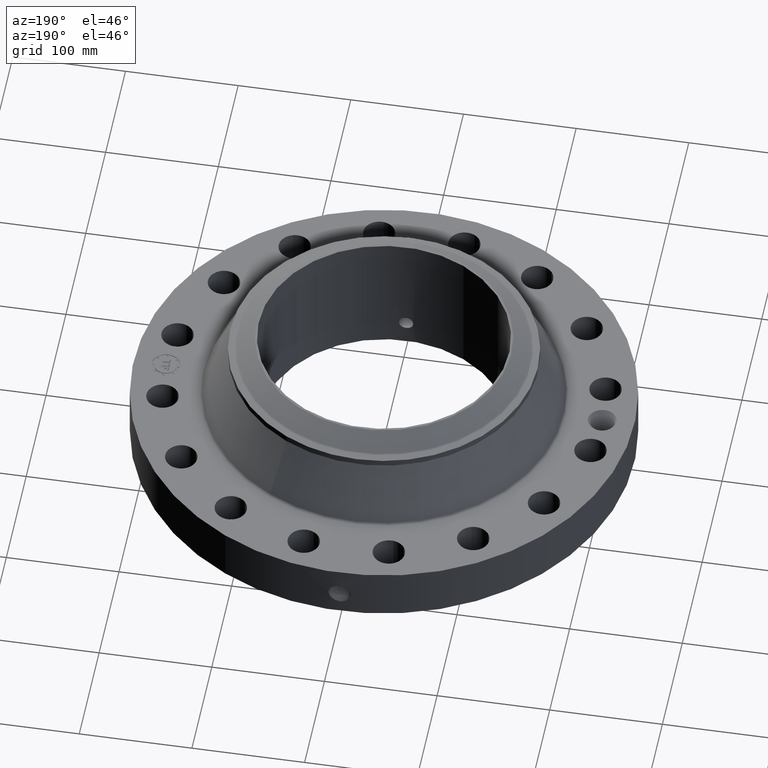
[diagram: clean part render]
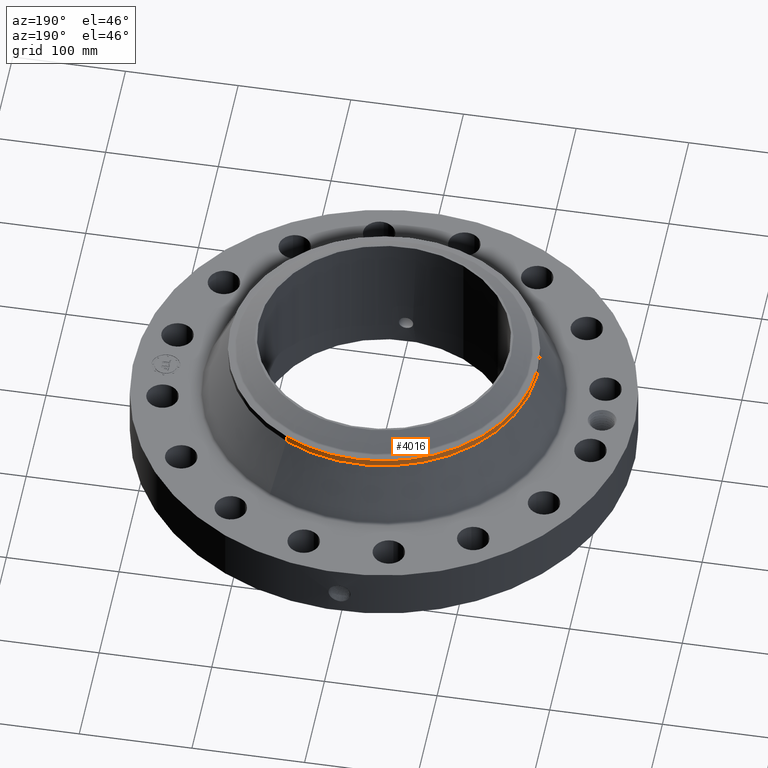
[diagram: same view with one face highlighted and labeled with its STEP entity id]
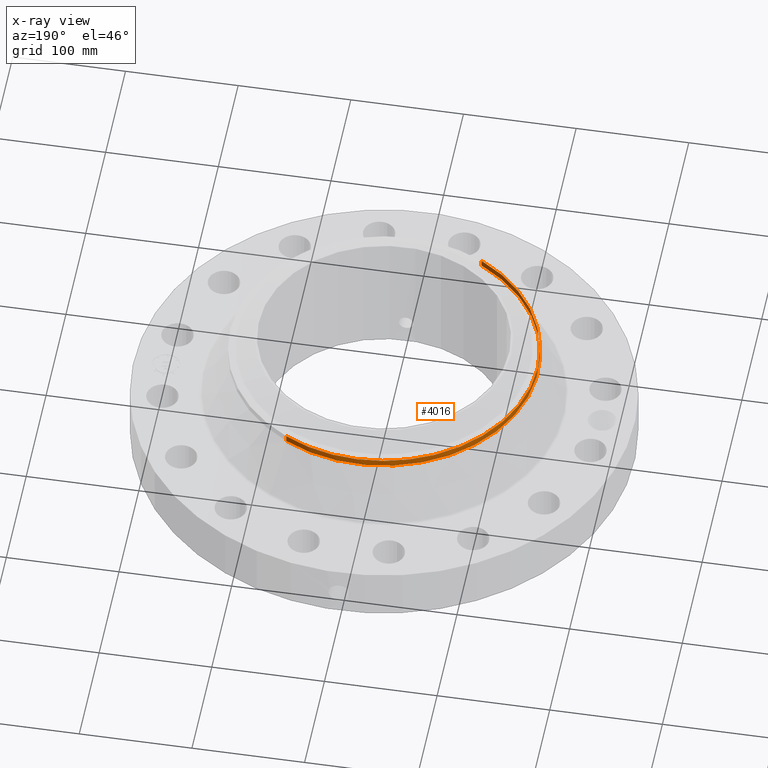
[diagram: x-ray of the same camera — body ghosted, the highlighted face saturated]
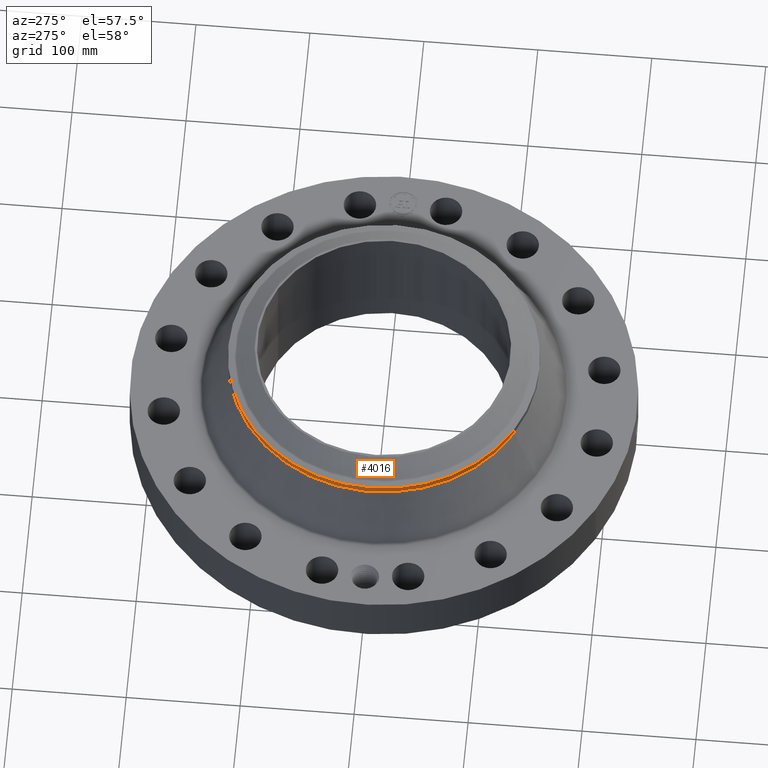
[diagram: same view with one face highlighted and labeled with its STEP entity id]
A machine part, auxiliary view. The second image highlights one B-rep face of the part: STEP entity #4016.
The next image is the same camera in x-ray: the body ghosted, the highlighted face saturated — about 0% of this face is hidden behind the body in this view.
A second angle (auxiliary view) of the same face is appended — the face is thin or edge-on in the first view.
In plain terms, the highlighted cylindrical surface (partial cylindrical patch) has radius 136.525 mm, axis along (0, 0, -1).
Its self-contained STEP definition (entity closure, byte-faithful):
#3202=AXIS2_PLACEMENT_3D('Circle Axis2P3D',#3200,#3201,$) ;
#3961=AXIS2_PLACEMENT_3D('Cylinder Axis2P3D',#3958,#3959,#3960) ;
#3999=AXIS2_PLACEMENT_3D('Circle Axis2P3D',#3997,#3998,$) ;
#4006=AXIS2_PLACEMENT_3D('Circle Axis2P3D',#4004,#4005,$) ;
#3178=CARTESIAN_POINT('Vertex',(2.57691227001,4.71700627018,3.88578537513)) ;
#3185=CARTESIAN_POINT('Vertex',(-2.57691227001,-4.71700627018,3.88578537513)) ;
#3200=CARTESIAN_POINT('Axis2P3D Location',(0.,0.,3.88578537513)) ;
#3958=CARTESIAN_POINT('Axis2P3D Location',(0.,0.,2.37000000001)) ;
#3963=CARTESIAN_POINT('Line Origine',(-2.57691227001,-4.71700627018,4.00389561135)) ;
#3967=CARTESIAN_POINT('Vertex',(-2.57691227001,-4.71700627018,4.12200584757)) ;
#3970=CARTESIAN_POINT('Line Origine',(2.57691227001,4.71700627018,4.00389561135)) ;
#3974=CARTESIAN_POINT('Vertex',(2.57691227001,4.71700627018,4.12200584757)) ;
#3997=CARTESIAN_POINT('Axis2P3D Location',(0.,0.,4.12200584757)) ;
#4001=CARTESIAN_POINT('Vertex',(-2.57691227001,4.71700627018,4.12200584757)) ;
#4004=CARTESIAN_POINT('Axis2P3D Location',(0.,0.,4.12200584757)) ;
#3201=DIRECTION('Axis2P3D Direction',(0.,0.,-0.0393700787402)) ;
#3959=DIRECTION('Axis2P3D Direction',(0.,0.,-0.0393700787402)) ;
#3960=DIRECTION('Axis2P3D XDirection',(-0.0188750212049,-0.0345504945626,0.)) ;
#3964=DIRECTION('Vector Direction',(0.,0.,-0.0393700787402)) ;
#3971=DIRECTION('Vector Direction',(0.,0.,-0.0393700787402)) ;
#3998=DIRECTION('Axis2P3D Direction',(0.,0.,-0.0393700787402)) ;
#4005=DIRECTION('Axis2P3D Direction',(0.,0.,-0.0393700787402)) ;
#3965=VECTOR('Line Direction',#3964,0.0393700787402) ;
#3972=VECTOR('Line Direction',#3971,0.0393700787402) ;
#4010=ORIENTED_EDGE('',*,*,#3976,.F.) ;
#4011=ORIENTED_EDGE('',*,*,#3204,.F.) ;
#4012=ORIENTED_EDGE('',*,*,#3969,.T.) ;
#4013=ORIENTED_EDGE('',*,*,#4003,.F.) ;
#4014=ORIENTED_EDGE('',*,*,#4008,.T.) ;
#4016=ADVANCED_FACE('PartBody',(#4015),#3962,.T.) ;
#3203=CIRCLE('generated circle',#3202,5.37500000002) ;
#4000=CIRCLE('generated circle',#3999,5.37500000002) ;
#4007=CIRCLE('generated circle',#4006,5.37500000002) ;
#3962=CYLINDRICAL_SURFACE('generated cylinder',#3961,5.37500000002) ;
#3204=EDGE_CURVE('',#3186,#3179,#3203,.T.) ;
#3969=EDGE_CURVE('',#3186,#3968,#3966,.F.) ;
#3976=EDGE_CURVE('',#3179,#3975,#3973,.F.) ;
#4003=EDGE_CURVE('',#4002,#3968,#4000,.F.) ;
#4008=EDGE_CURVE('',#4002,#3975,#4007,.T.) ;
#4009=EDGE_LOOP('',(#4010,#4011,#4012,#4013,#4014)) ;
#4015=FACE_OUTER_BOUND('',#4009,.T.) ;
#3966=LINE('Line',#3963,#3965) ;
#3973=LINE('Line',#3970,#3972) ;
#3179=VERTEX_POINT('',#3178) ;
#3186=VERTEX_POINT('',#3185) ;
#3968=VERTEX_POINT('',#3967) ;
#3975=VERTEX_POINT('',#3974) ;
#4002=VERTEX_POINT('',#4001) ;